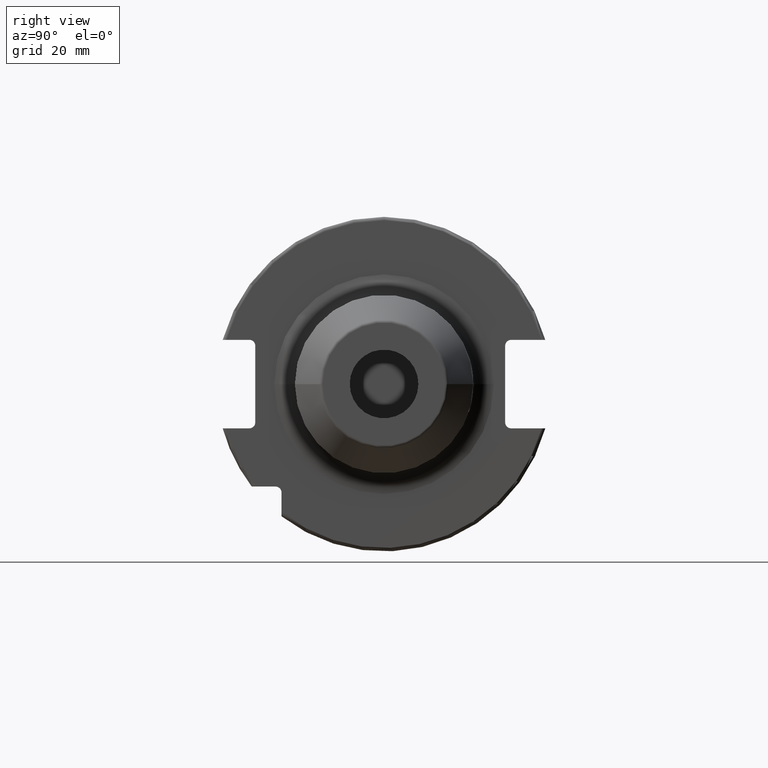
[diagram: clean part render]
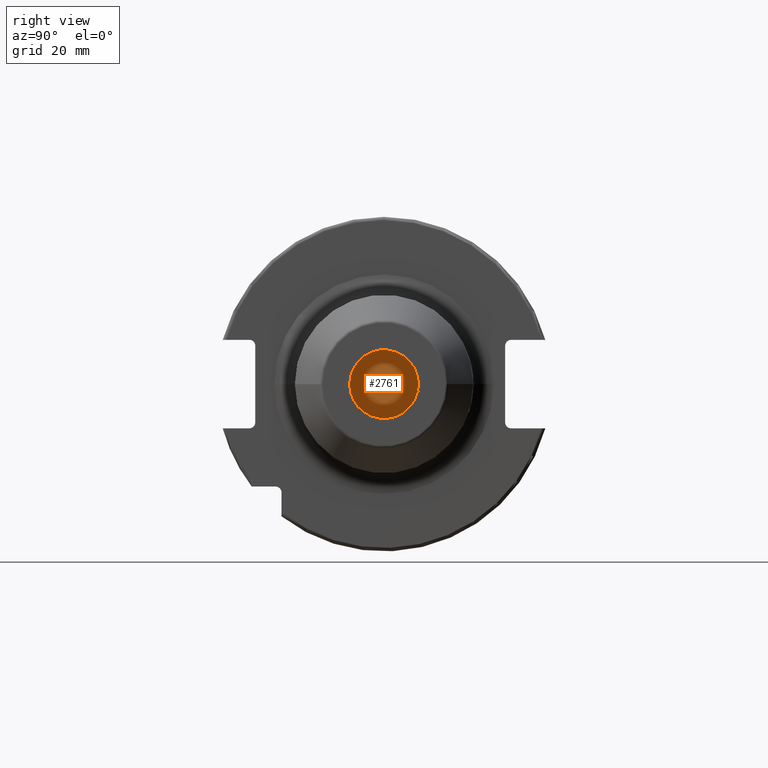
[diagram: same view with one face highlighted and labeled with its STEP entity id]
A machine part, right view. The second image highlights one B-rep face of the part: STEP entity #2761.
In plain terms, the highlighted planar face has unit normal (1, 0, 0).
Its self-contained STEP definition (entity closure, byte-faithful):
#1066=CARTESIAN_POINT('',(2.9E0,0.E0,0.E0));
#1067=DIRECTION('',(-1.E0,0.E0,0.E0));
#1068=DIRECTION('',(0.E0,1.E0,0.E0));
#1069=AXIS2_PLACEMENT_3D('',#1066,#1067,#1068);
#1071=CARTESIAN_POINT('',(2.9E0,0.E0,0.E0));
#1072=DIRECTION('',(1.E0,0.E0,0.E0));
#1073=DIRECTION('',(0.E0,1.E0,0.E0));
#1074=AXIS2_PLACEMENT_3D('',#1071,#1072,#1073);
#1609=CARTESIAN_POINT('',(2.9E0,1.E1,0.E0));
#1610=CARTESIAN_POINT('',(2.9E0,-1.E1,0.E0));
#1611=VERTEX_POINT('',#1609);
#1612=VERTEX_POINT('',#1610);
#2752=CARTESIAN_POINT('',(2.9E0,0.E0,0.E0));
#2753=DIRECTION('',(1.E0,0.E0,0.E0));
#2754=DIRECTION('',(0.E0,-1.E0,0.E0));
#2755=AXIS2_PLACEMENT_3D('',#2752,#2753,#2754);
#2756=PLANE('',#2755);
#2757=ORIENTED_EDGE('',*,*,#2729,.T.);
#2758=ORIENTED_EDGE('',*,*,#2743,.F.);
#2759=EDGE_LOOP('',(#2757,#2758));
#2760=FACE_OUTER_BOUND('',#2759,.F.);
#2761=ADVANCED_FACE('',(#2760),#2756,.T.);
#1070=CIRCLE('',#1069,1.E1);
#1075=CIRCLE('',#1074,1.E1);
#2729=EDGE_CURVE('',#1611,#1612,#1070,.T.);
#2743=EDGE_CURVE('',#1611,#1612,#1075,.T.);